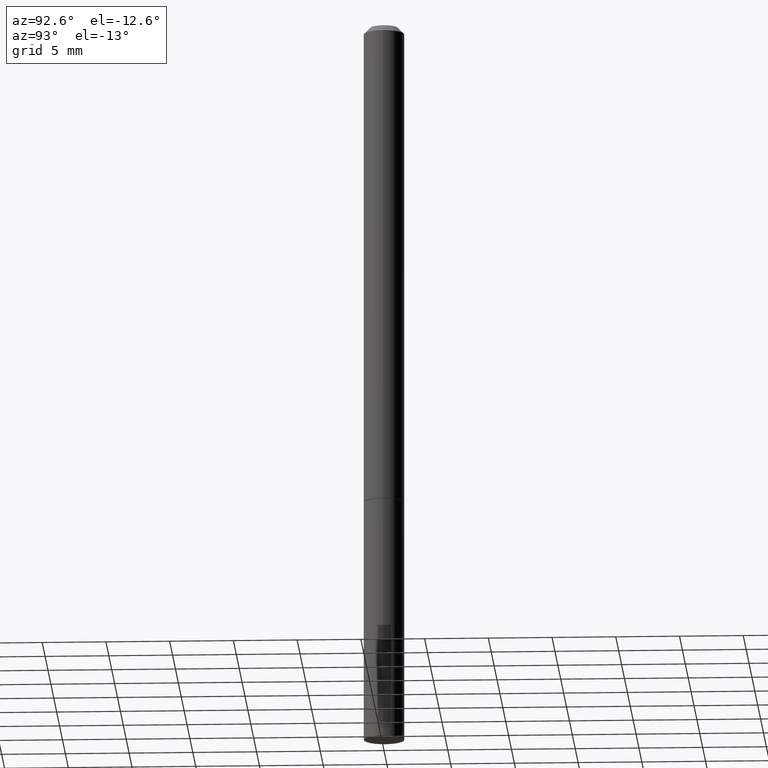
[diagram: clean part render]
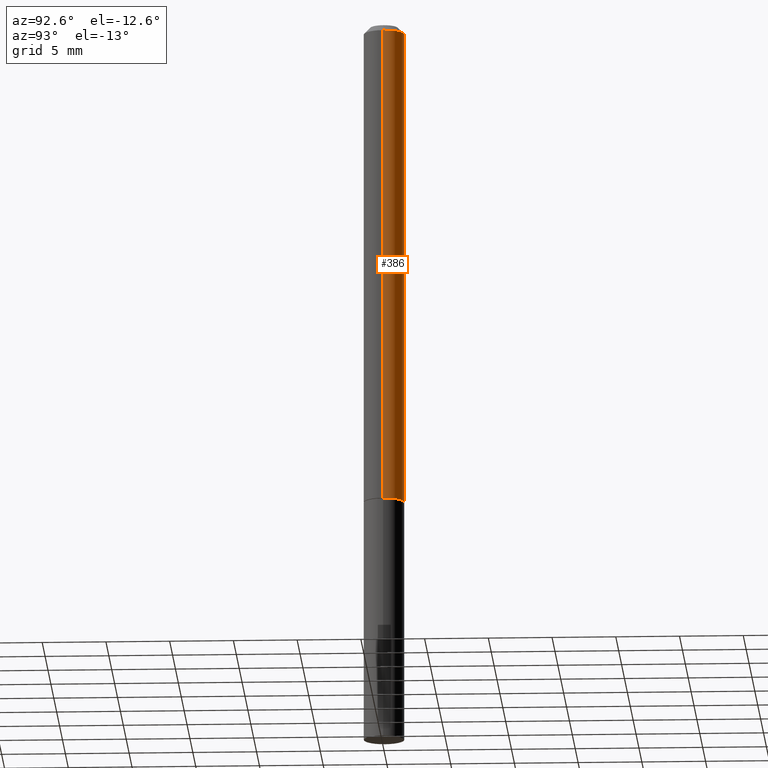
[diagram: same view with one face highlighted and labeled with its STEP entity id]
A machine part, auxiliary view. The second image highlights one B-rep face of the part: STEP entity #386.
In plain terms, the highlighted cylindrical surface (edge-blend (fillet) strip) has radius 1.5875 mm, axis along (-0, 0, 1).
Its self-contained STEP definition (entity closure, byte-faithful):
#2 = AXIS2_PLACEMENT_3D ( 'NONE', #319, #113, #296 ) ;
#8 = CARTESIAN_POINT ( 'NONE',  ( -0.06249999999999984734, 4.440892098500615315E-16, -3.074334431409308406E-30 ) ) ;
#25 = EDGE_CURVE ( 'NONE', #377, #76, #119, .T. ) ;
#30 = ORIENTED_EDGE ( 'NONE', *, *, #116, .F. ) ;
#35 = CARTESIAN_POINT ( 'NONE',  ( 3.665757740471520413E-29, -5.233730526925875958E-15, -1.499000000000000332 ) ) ;
#49 = ORIENTED_EDGE ( 'NONE', *, *, #25, .F. ) ;
#50 = CARTESIAN_POINT ( 'NONE',  ( -0.06249999999999974326, 3.666055405785266456E-16, -0.02000000000000007674 ) ) ;
#53 = VECTOR ( 'NONE', #236, 39.37007874015748143 ) ;
#56 = DIRECTION ( 'NONE',  ( -2.445468806185136877E-29, 3.491481338843145188E-15, 1.000000000000000000 ) ) ;
#72 = AXIS2_PLACEMENT_3D ( 'NONE', #35, #237, #208 ) ;
#76 = VERTEX_POINT ( 'NONE', #50 ) ;
#87 = VERTEX_POINT ( 'NONE', #288 ) ;
#94 = AXIS2_PLACEMENT_3D ( 'NONE', #228, #133, #198 ) ;
#99 = VECTOR ( 'NONE', #56, 39.37007874015748143 ) ;
#113 = DIRECTION ( 'NONE',  ( -2.445468806185136597E-29, 3.491481338843145583E-15, 1.000000000000000000 ) ) ;
#116 = EDGE_CURVE ( 'NONE', #166, #377, #139, .T. ) ;
#117 = CARTESIAN_POINT ( 'NONE',  ( 0.06249999999999984734, -4.364351673553905847E-16, 3.047610484872452514E-30 ) ) ;
#119 = CIRCLE ( 'NONE', #2, 0.06249999999999974326 ) ;
#133 = DIRECTION ( 'NONE',  ( -2.445468806185136597E-29, 3.491481338843145583E-15, 1.000000000000000000 ) ) ;
#135 = CYLINDRICAL_SURFACE ( 'NONE', #94, 0.06249999999999984734 ) ;
#138 = FACE_OUTER_BOUND ( 'NONE', #352, .T. ) ;
#139 = LINE ( 'NONE', #117, #99 ) ;
#141 = ORIENTED_EDGE ( 'NONE', *, *, #216, .T. ) ;
#166 = VERTEX_POINT ( 'NONE', #329 ) ;
#198 = DIRECTION ( 'NONE',  ( 1.000000000000000000, -6.982962677686266711E-15, 4.876176775795935793E-29 ) ) ;
#208 = DIRECTION ( 'NONE',  ( 1.000000000000000000, -6.982962677686268288E-15, 0.000000000000000000 ) ) ;
#216 = EDGE_CURVE ( 'NONE', #166, #87, #380, .T. ) ;
#228 = CARTESIAN_POINT ( 'NONE',  ( 0.000000000000000000, 0.000000000000000000, 0.000000000000000000 ) ) ;
#236 = DIRECTION ( 'NONE',  ( -2.445468806185136877E-29, 3.491481338843145188E-15, 1.000000000000000000 ) ) ;
#237 = DIRECTION ( 'NONE',  ( -2.445468806185136597E-29, 3.491481338843145583E-15, 1.000000000000000000 ) ) ;
#253 = CARTESIAN_POINT ( 'NONE',  ( 0.06249999999999974326, -4.986107516375821473E-16, -0.02000000000000007674 ) ) ;
#275 = LINE ( 'NONE', #8, #53 ) ;
#288 = CARTESIAN_POINT ( 'NONE',  ( -0.06249999999999993755, -2.207690867001303462E-15, -1.499000000000000332 ) ) ;
#296 = DIRECTION ( 'NONE',  ( 1.000000000000000000, -6.982962677686265922E-15, 0.000000000000000000 ) ) ;
#298 = EDGE_CURVE ( 'NONE', #87, #76, #275, .T. ) ;
#319 = CARTESIAN_POINT ( 'NONE',  ( 4.890937612370292426E-31, -6.982962677686317493E-17, -0.02000000000000007674 ) ) ;
#329 = CARTESIAN_POINT ( 'NONE',  ( 0.06249999999999995143, -5.670165694281267628E-15, -1.499000000000000332 ) ) ;
#352 = EDGE_LOOP ( 'NONE', ( #141, #367, #49, #30 ) ) ;
#367 = ORIENTED_EDGE ( 'NONE', *, *, #298, .T. ) ;
#377 = VERTEX_POINT ( 'NONE', #253 ) ;
#380 = CIRCLE ( 'NONE', #72, 0.06249999999999995143 ) ;
#386 = ADVANCED_FACE ( 'NONE', ( #138 ), #135, .T. ) ;